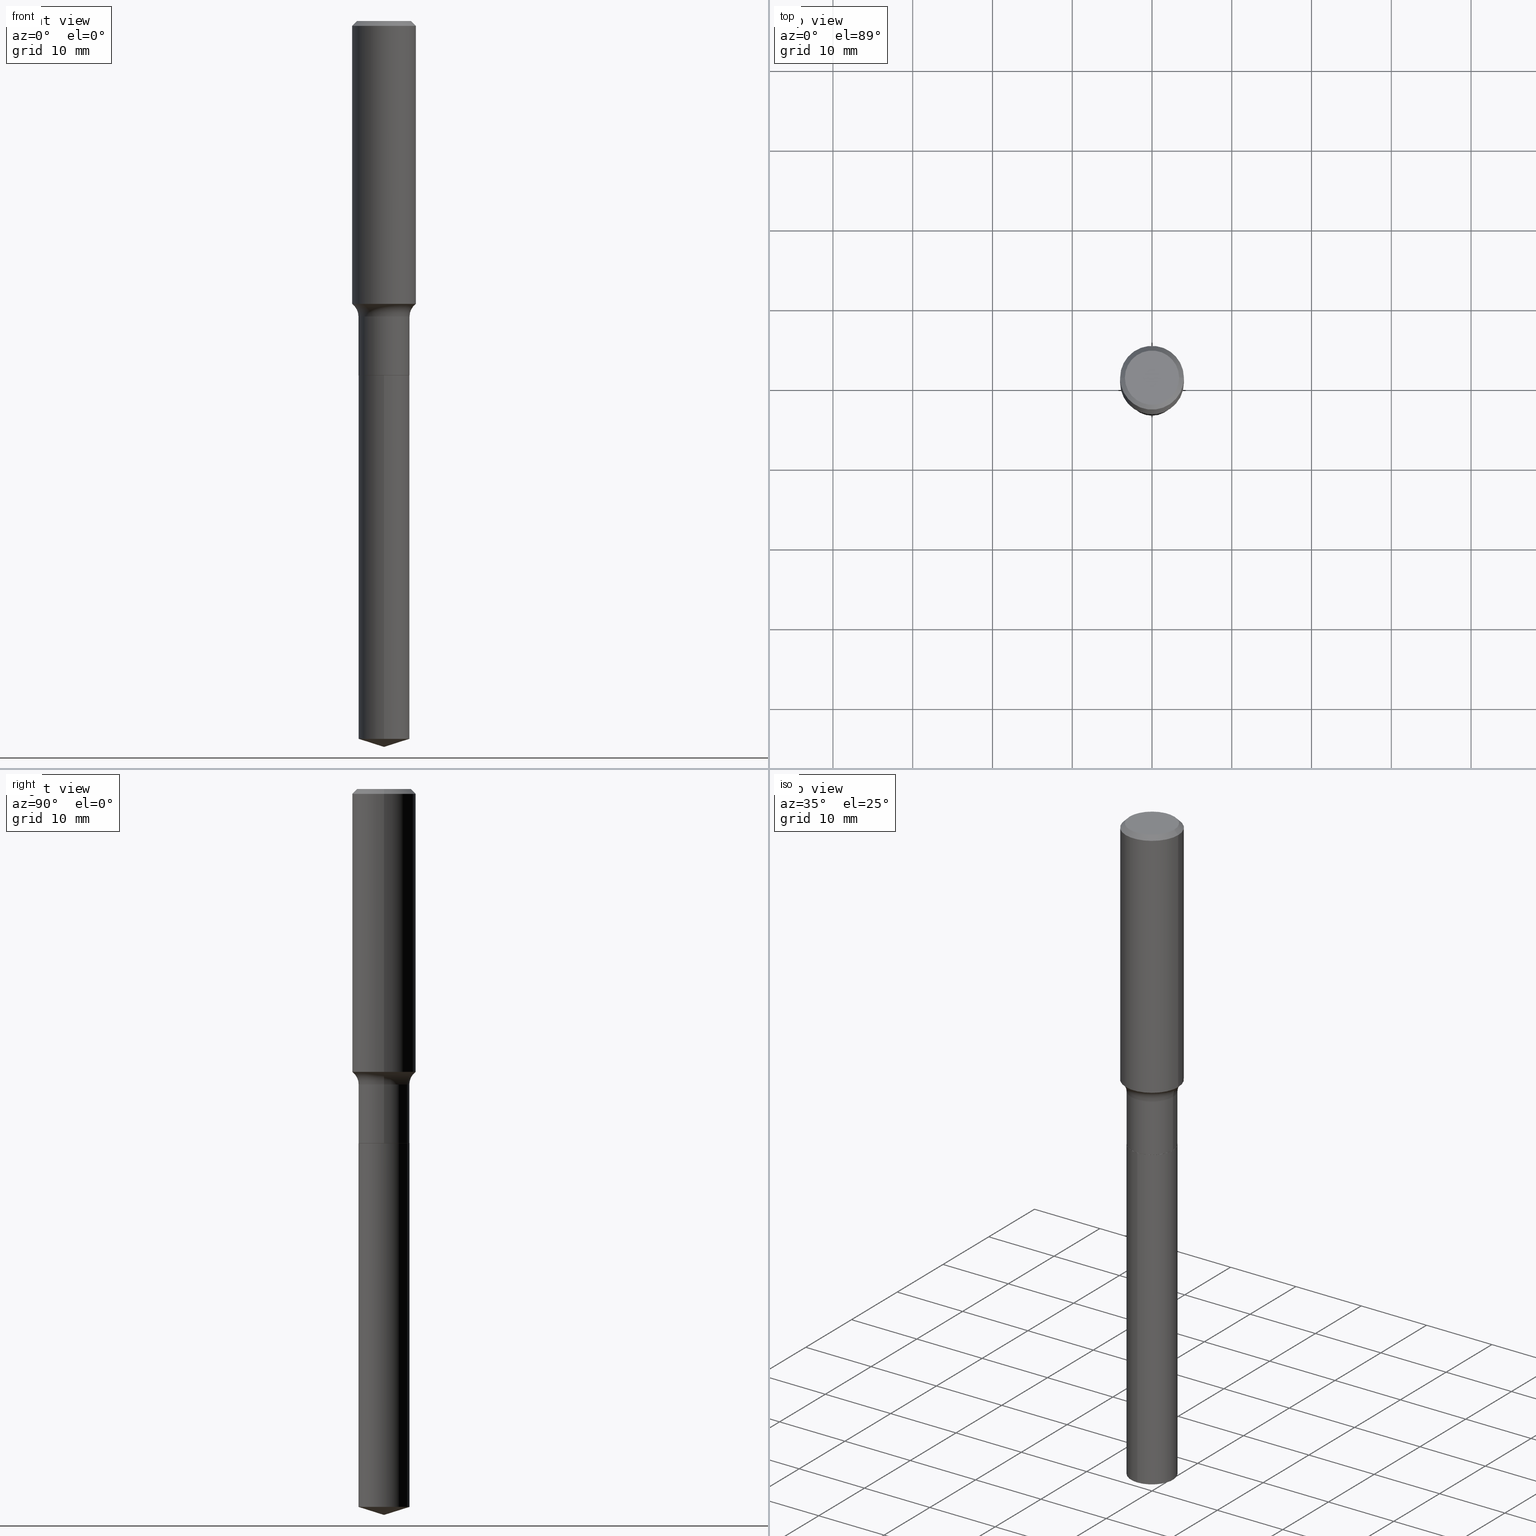
[diagram: canonical four-view strip — front | top / right | iso, engineering-drawing reading convention]
A machine part, canonical four-view strip (front | top / right | iso — engineering-drawing reading convention). The complete STEP part file that produces these views, byte-faithful:
ISO-10303-21;
HEADER;
FILE_DESCRIPTION (( 'STEP AP203' ),
    '1' );
FILE_NAME ('64136.STEP',
    '2024-04-19T15:18:46',
    ( '' ),
    ( '' ),
    'SwSTEP 2.0',
    'SolidWorks 2023',
    '' );
FILE_SCHEMA (( 'CONFIG_CONTROL_DESIGN' ));
ENDSEC;

DATA;
#1 = ORIENTED_EDGE ( 'NONE', *, *, #36, .F. ) ;
#2 = DIRECTION ( 'NONE',  ( -2.445468806185136597E-29, 3.491481338843145583E-15, 1.000000000000000000 ) ) ;
#3 = LINE ( 'NONE', #141, #125 ) ;
#4 = ORIENTED_EDGE ( 'NONE', *, *, #395, .F. ) ;
#5 = ADVANCED_FACE ( 'NONE', ( #437 ), #405, .T. ) ;
#6 = VECTOR ( 'NONE', #140, 39.37007874015748143 ) ;
#7 = CARTESIAN_POINT ( 'NONE',  ( 4.274924020092237183E-29, -6.103458528431703746E-15, -1.748100000000000209 ) ) ;
#8 = DIRECTION ( 'NONE',  ( -6.982962677686265922E-15, -1.000000000000000000, 4.336266656609941617E-15 ) ) ;
#9 = LENGTH_MEASURE_WITH_UNIT ( LENGTH_MEASURE( 0.02539999999999999897 ), #319 );
#10 = AXIS2_PLACEMENT_3D ( 'NONE', #484, #23, #56 ) ;
#11 = APPROVAL_STATUS ( 'not_yet_approved' ) ;
#12 = AXIS2_PLACEMENT_3D ( 'NONE', #366, #388, #312 ) ;
#13 = DIRECTION ( 'NONE',  ( 0.7071067811865450192, -7.319954787623246579E-15, -0.7071067811865500152 ) ) ;
#14 = EDGE_CURVE ( 'NONE', #299, #51, #477, .T. ) ;
#15 = EDGE_LOOP ( 'NONE', ( #171, #466, #411, #402 ) ) ;
#16 = DIRECTION ( 'NONE',  ( -2.445468806185136597E-29, 3.491481338843145583E-15, 1.000000000000000000 ) ) ;
#17 = MANIFOLD_SOLID_BREP ( 'Body-Move/Copy2[2]', #335 ) ;
#18 = AXIS2_PLACEMENT_3D ( 'NONE', #488, #238, #397 ) ;
#19 = VECTOR ( 'NONE', #456, 39.37007874015748143 ) ;
#20 = CARTESIAN_POINT ( 'NONE',  ( 4.274924020092237183E-29, -6.103458528431703746E-15, -1.748100000000000209 ) ) ;
#21 = LINE ( 'NONE', #473, #376 ) ;
#22 = PERSON_AND_ORGANIZATION ( #122, #368 ) ;
#23 = DIRECTION ( 'NONE',  ( -2.445468806185136597E-29, 3.491481338843145583E-15, 1.000000000000000000 ) ) ;
#24 = LINE ( 'NONE', #123, #269 ) ;
#25 = APPROVAL_STATUS ( 'not_yet_approved' ) ;
#26 = ORIENTED_EDGE ( 'NONE', *, *, #99, .T. ) ;
#27 = FACE_OUTER_BOUND ( 'NONE', #37, .T. ) ;
#28 = ORIENTED_EDGE ( 'NONE', *, *, #249, .T. ) ;
#29 = AXIS2_PLACEMENT_3D ( 'NONE', #373, #246, #134 ) ;
#30 = CARTESIAN_POINT ( 'NONE',  ( 5.777420054612421980E-31, -8.248624663016985234E-17, -0.02362500000000015282 ) ) ;
#31 = AXIS2_PLACEMENT_3D ( 'NONE', #268, #470, #187 ) ;
#32 = ORIENTED_EDGE ( 'NONE', *, *, #163, .T. ) ;
#33 = EDGE_CURVE ( 'NONE', #51, #409, #63, .T. ) ;
#34 = FACE_OUTER_BOUND ( 'NONE', #196, .T. ) ;
#35 = CARTESIAN_POINT ( 'NONE',  ( 8.952838470578126208E-16, 0.1259999999999875941, -3.542972352601249764 ) ) ;
#36 = EDGE_CURVE ( 'NONE', #299, #409, #21, .T. ) ;
#37 = EDGE_LOOP ( 'NONE', ( #4, #447, #217, #398 ) ) ;
#38 = CONICAL_SURFACE ( 'NONE', #74, 124.8659371009168240, 1.265363707695895679 ) ;
#39 = EDGE_LOOP ( 'NONE', ( #152, #119, #113, #351 ) ) ;
#40 = AXIS2_PLACEMENT_3D ( 'NONE', #30, #130, #403 ) ;
#41 = DATE_AND_TIME ( #225, #251 ) ;
#42 = APPLICATION_CONTEXT ( 'configuration controlled 3d designs of mechanical parts and assemblies' ) ;
#43 = EDGE_CURVE ( 'NONE', #418, #165, #91, .T. ) ;
#44 = VECTOR ( 'NONE', #83, 39.37007874015748143 ) ;
#45 = CARTESIAN_POINT ( 'NONE',  ( 8.664284495484621704E-29, -1.237014147748660081E-14, -3.542972352601248875 ) ) ;
#46 = CARTESIAN_POINT ( 'NONE',  ( -0.1255000000000000004, -5.211727395052777615E-15, -1.748100000000000209 ) ) ;
#47 = PERSON_AND_ORGANIZATION_ROLE ( 'creator' ) ;
#48 = CARTESIAN_POINT ( 'NONE',  ( -1.002970424325033577E-46, 1.431975951230896486E-32, 4.101342130344485961E-18 ) ) ;
#49 = DIRECTION ( 'NONE',  ( -6.982962677686265922E-15, -1.000000000000000000, 4.336266656609941617E-15 ) ) ;
#50 = SHAPE_DEFINITION_REPRESENTATION ( #114, #431 ) ;
#51 = VERTEX_POINT ( 'NONE', #362 ) ;
#52 = CARTESIAN_POINT ( 'NONE',  ( -0.1259999999999999731, 8.952838470577260433E-16, -6.197858213721180607E-30 ) ) ;
#53 = DATE_AND_TIME ( #453, #393 ) ;
#54 = ORIENTED_EDGE ( 'NONE', *, *, #291, .T. ) ;
#55 = LINE ( 'NONE', #230, #446 ) ;
#56 = DIRECTION ( 'NONE',  ( 1.000000000000000000, -6.982962677686267499E-15, 0.000000000000000000 ) ) ;
#57 = ORIENTED_EDGE ( 'NONE', *, *, #474, .F. ) ;
#58 = CARTESIAN_POINT ( 'NONE',  ( -0.1259999999999999731, -4.701386165040894115E-15, -1.458299999999999930 ) ) ;
#59 = EDGE_CURVE ( 'NONE', #344, #127, #24, .T. ) ;
#60 = SECURITY_CLASSIFICATION_LEVEL ( 'unclassified' ) ;
#61 = DIRECTION ( 'NONE',  ( -0.7071067811865450192, 2.468850131082230634E-15, -0.7071067811865500152 ) ) ;
#62 = ORIENTED_EDGE ( 'NONE', *, *, #270, .T. ) ;
#63 = CIRCLE ( 'NONE', #445, 0.1260000000000000009 ) ;
#64 = CARTESIAN_POINT ( 'NONE',  ( 8.952838470578130152E-16, 0.1259999999999939224, -1.748100000000000653 ) ) ;
#65 = CC_DESIGN_APPROVAL ( #343, ( #112 ) ) ;
#66 = CARTESIAN_POINT ( 'NONE',  ( -8.751809210620882118E-28, 1.249492841719930742E-13, 35.78737874015747877 ) ) ;
#67 = DIRECTION ( 'NONE',  ( 1.000000000000000000, -6.982962677686266711E-15, 4.876176775795936353E-29 ) ) ;
#68 = DIRECTION ( 'NONE',  ( -2.445468806185136877E-29, 3.491481338843145188E-15, 1.000000000000000000 ) ) ;
#69 = EDGE_LOOP ( 'NONE', ( #236, #491, #327 ) ) ;
#70 = ADVANCED_FACE ( 'NONE', ( #380 ), #458, .F. ) ;
#71 = ORIENTED_EDGE ( 'NONE', *, *, #424, .T. ) ;
#72 = VECTOR ( 'NONE', #391, 39.37007874015748854 ) ;
#73 = CARTESIAN_POINT ( 'NONE',  ( 0.1259999999999999731, -5.971480533823427821E-15, -1.458299999999999930 ) ) ;
#74 = AXIS2_PLACEMENT_3D ( 'NONE', #66, #142, #178 ) ;
#75 = CARTESIAN_POINT ( 'NONE',  ( 3.566227160059783861E-29, -5.091627236434958468E-15, -1.458299999999999930 ) ) ;
#76 = CARTESIAN_POINT ( 'NONE',  ( -0.1255000000000000004, -5.209078167878667203E-15, -1.748100000000000209 ) ) ;
#77 = EDGE_CURVE ( 'NONE', #267, #165, #223, .T. ) ;
#78 = AXIS2_PLACEMENT_3D ( 'NONE', #48, #414, #172 ) ;
#79 = LOCAL_TIME ( 11, 18, 46.00000000000000000, #161 ) ;
#80 = AXIS2_PLACEMENT_3D ( 'NONE', #20, #166, #334 ) ;
#81 = PERSON_AND_ORGANIZATION_ROLE ( 'design_owner' ) ;
#82 = ORIENTED_EDGE ( 'NONE', *, *, #291, .F. ) ;
#83 = DIRECTION ( 'NONE',  ( 0.7071067811866199593, -2.468850131083015945E-15, 0.7071067811864750752 ) ) ;
#84 = AXIS2_PLACEMENT_3D ( 'NONE', #328, #279, #204 ) ;
#85 = DIRECTION ( 'NONE',  ( 0.000000000000000000, 0.000000000000000000, 1.000000000000000000 ) ) ;
#86 = TOROIDAL_SURFACE ( 'NONE', #406, 0.2039999999999999591, 0.07800000000000001377 ) ;
#87 = CYLINDRICAL_SURFACE ( 'NONE', #168, 0.1260000000000000009 ) ;
#88 = LINE ( 'NONE', #385, #231 ) ;
#89 = DIRECTION ( 'NONE',  ( 1.000000000000000000, -6.982962677686267499E-15, 0.000000000000000000 ) ) ;
#90 = VERTEX_POINT ( 'NONE', #415 ) ;
#91 = LINE ( 'NONE', #52, #454 ) ;
#92 = APPROVAL_DATE_TIME ( #401, #352 ) ;
#93 = EDGE_LOOP ( 'NONE', ( #132, #400, #62, #274 ) ) ;
#94 = FACE_OUTER_BOUND ( 'NONE', #318, .T. ) ;
#95 = DIRECTION ( 'NONE',  ( -6.982962677686266711E-15, -1.000000000000000000, 3.491481338843145583E-15 ) ) ;
#96 = CALENDAR_DATE ( 2024, 19, 4 ) ;
#97 = VERTEX_POINT ( 'NONE', #73 ) ;
#98 = APPROVAL_PERSON_ORGANIZATION ( #345, #352, #330 ) ;
#99 = EDGE_CURVE ( 'NONE', #90, #160, #3, .T. ) ;
#100 = DIRECTION ( 'NONE',  ( 2.445468806185136597E-29, -3.491481338843145583E-15, -1.000000000000000000 ) ) ;
#101 = DIRECTION ( 'NONE',  ( 1.000000000000000000, -6.982962677686267499E-15, 0.000000000000000000 ) ) ;
#102 = DIRECTION ( 'NONE',  ( 7.105427357601001859E-15, 1.000000000000000000, -3.491481338843145583E-15 ) ) ;
#103 = CARTESIAN_POINT ( 'NONE',  ( 3.566227160059783861E-29, -5.091627236434958468E-15, -1.458299999999999930 ) ) ;
#104 = AXIS2_PLACEMENT_3D ( 'NONE', #412, #378, #212 ) ;
#105 = CARTESIAN_POINT ( 'NONE',  ( 4.274924020092237183E-29, -6.103458528431703746E-15, -1.748100000000000209 ) ) ;
#106 = ADVANCED_FACE ( 'NONE', ( #34 ), #294, .T. ) ;
#107 = DIRECTION ( 'NONE',  ( -2.445468806185136597E-29, 3.491481338843145583E-15, 1.000000000000000000 ) ) ;
#108 = AXIS2_PLACEMENT_3D ( 'NONE', #316, #16, #157 ) ;
#109 = DIRECTION ( 'NONE',  ( -2.445468806185136597E-29, 3.491481338843145583E-15, 1.000000000000000000 ) ) ;
#110 = PRODUCT ( '64136', '64136', '', ( #233 ) ) ;
#111 = ORIENTED_EDGE ( 'NONE', *, *, #33, .T. ) ;
#112 = PRODUCT_DEFINITION ( 'UNKNOWN', '', #317, #407 ) ;
#113 = ORIENTED_EDGE ( 'NONE', *, *, #383, .T. ) ;
#114 = PRODUCT_DEFINITION_SHAPE ( 'NONE', 'NONE',  #112 ) ;
#115 = DIRECTION ( 'NONE',  ( -2.445500076387621341E-29, 3.491436558133398134E-15, 1.000000000000000000 ) ) ;
#116 = COORDINATED_UNIVERSAL_TIME_OFFSET ( 5, 0, .BEHIND. ) ;
#117 = EDGE_CURVE ( 'NONE', #361, #267, #213, .T. ) ;
#118 = EDGE_LOOP ( 'NONE', ( #298, #363, #169, #211 ) ) ;
#119 = ORIENTED_EDGE ( 'NONE', *, *, #295, .T. ) ;
#120 = LINE ( 'NONE', #396, #6 ) ;
#121 = FACE_OUTER_BOUND ( 'NONE', #93, .T. ) ;
#122 = PERSON ( 'UNSPECIFIED', 'UNSPECIFIED', 'UNSPECIFIED', ('UNSPECIFIED'), ('UNSPECIFIED'), ('UNSPECIFIED') ) ;
#123 = CARTESIAN_POINT ( 'NONE',  ( 0.1575000000000000011, -1.163014681279185964E-15, -0.02362500000000015282 ) ) ;
#124 = DATE_TIME_ROLE ( 'classification_date' ) ;
#125 = VECTOR ( 'NONE', #61, 39.37007874015748143 ) ;
#126 = EDGE_CURVE ( 'NONE', #361, #97, #149, .T. ) ;
#127 = VERTEX_POINT ( 'NONE', #200 ) ;
#128 = DIRECTION ( 'NONE',  ( -2.445468806185136597E-29, 3.491481338843145583E-15, 1.000000000000000000 ) ) ;
#129 = CC_DESIGN_PERSON_AND_ORGANIZATION_ASSIGNMENT ( #369, #333, ( #159 ) ) ;
#130 = DIRECTION ( 'NONE',  ( -2.445468806185136597E-29, 3.491481338843145583E-15, 1.000000000000000000 ) ) ;
#131 = CARTESIAN_POINT ( 'NONE',  ( 0.000000000000000000, 0.000000000000000000, 0.000000000000000000 ) ) ;
#132 = ORIENTED_EDGE ( 'NONE', *, *, #301, .F. ) ;
#133 = VERTEX_POINT ( 'NONE', #364 ) ;
#134 = DIRECTION ( 'NONE',  ( -6.982962677686265922E-15, -1.000000000000000000, 4.336266656609941617E-15 ) ) ;
#135 = VECTOR ( 'NONE', #261, 39.37007874015748143 ) ;
#136 = CC_DESIGN_SECURITY_CLASSIFICATION ( #159, ( #317 ) ) ;
#137 = CARTESIAN_POINT ( 'NONE',  ( -1.002970424325033577E-46, 1.431975951230896486E-32, 4.101342130344485961E-18 ) ) ;
#138 = DIRECTION ( 'NONE',  ( 1.000000000000000000, -6.982962677686266711E-15, 4.876176775795936353E-29 ) ) ;
#139 = LINE ( 'NONE', #292, #19 ) ;
#140 = DIRECTION ( 'NONE',  ( -2.445500076387621622E-29, 3.491436558133398134E-15, 1.000000000000000000 ) ) ;
#141 = CARTESIAN_POINT ( 'NONE',  ( -0.1575000000000000011, 1.017330375105417098E-15, -0.02362500000000015282 ) ) ;
#142 = DIRECTION ( 'NONE',  ( -2.445500076387621341E-29, 3.491436558133398134E-15, 1.000000000000000000 ) ) ;
#143 = EDGE_CURVE ( 'NONE', #433, #253, #416, .T. ) ;
#144 = ORIENTED_EDGE ( 'NONE', *, *, #356, .F. ) ;
#145 = DIRECTION ( 'NONE',  ( -2.445500076387621341E-29, 3.491436558133398134E-15, 1.000000000000000000 ) ) ;
#146 = CIRCLE ( 'NONE', #78, 0.1338749999999999940 ) ;
#147 = AXIS2_PLACEMENT_3D ( 'NONE', #7, #425, #227 ) ;
#148 = CARTESIAN_POINT ( 'NONE',  ( 3.566227160059783861E-29, -5.091627236434958468E-15, -1.458299999999999930 ) ) ;
#149 = CIRCLE ( 'NONE', #287, 0.07799999999999999989 ) ;
#150 = VECTOR ( 'NONE', #226, 39.37007874015748143 ) ;
#151 = ADVANCED_FACE ( 'NONE', ( #167 ), #449, .T. ) ;
#152 = ORIENTED_EDGE ( 'NONE', *, *, #424, .F. ) ;
#153 = LINE ( 'NONE', #423, #44 ) ;
#154 = PERSON_AND_ORGANIZATION ( #122, #368 ) ;
#155 = DIRECTION ( 'NONE',  ( 1.000000000000000000, -6.982962677686268288E-15, 4.883557194083113462E-29 ) ) ;
#156 = ADVANCED_FACE ( 'NONE', ( #94 ), #306, .T. ) ;
#157 = DIRECTION ( 'NONE',  ( 1.000000000000000000, -6.982962677686268288E-15, 4.883557194083113462E-29 ) ) ;
#158 = CARTESIAN_POINT ( 'NONE',  ( 4.274924020092237183E-29, -6.103458528431703746E-15, -1.748100000000000209 ) ) ;
#159 = SECURITY_CLASSIFICATION ( '', '', #60 ) ;
#160 = VERTEX_POINT ( 'NONE', #162 ) ;
#161 = COORDINATED_UNIVERSAL_TIME_OFFSET ( 5, 0, .BEHIND. ) ;
#162 = CARTESIAN_POINT ( 'NONE',  ( -0.1575000000000000011, -1.358626883343626114E-15, -0.02362500000000015282 ) ) ;
#163 = EDGE_CURVE ( 'NONE', #127, #160, #256, .T. ) ;
#164 = PERSON_AND_ORGANIZATION ( #122, #368 ) ;
#165 = VERTEX_POINT ( 'NONE', #58 ) ;
#166 = DIRECTION ( 'NONE',  ( -2.445468806185136597E-29, 3.491481338843145583E-15, 1.000000000000000000 ) ) ;
#167 = FACE_OUTER_BOUND ( 'NONE', #118, .T. ) ;
#168 = AXIS2_PLACEMENT_3D ( 'NONE', #158, #305, #426 ) ;
#169 = ORIENTED_EDGE ( 'NONE', *, *, #323, .F. ) ;
#170 = PLANE ( 'NONE',  #84 ) ;
#171 = ORIENTED_EDGE ( 'NONE', *, *, #77, .F. ) ;
#172 = DIRECTION ( 'NONE',  ( 1.000000000000000000, -6.982962677686266711E-15, 4.876170806578254279E-29 ) ) ;
#173 = ORIENTED_EDGE ( 'NONE', *, *, #295, .F. ) ;
#174 = DIRECTION ( 'NONE',  ( -1.000000000000000000, 6.982962677686265922E-15, 0.000000000000000000 ) ) ;
#175 = CIRCLE ( 'NONE', #342, 0.1260000000000000009 ) ;
#176 = CIRCLE ( 'NONE', #468, 0.1259999999999999731 ) ;
#177 = DIRECTION ( 'NONE',  ( -6.982962677686265922E-15, -1.000000000000000000, 4.336266656609941617E-15 ) ) ;
#178 = DIRECTION ( 'NONE',  ( -6.982962677686265133E-15, -1.000000000000000000, 3.500519750498655128E-15 ) ) ;
#179 = ORIENTED_EDGE ( 'NONE', *, *, #163, .F. ) ;
#180 = ADVANCED_FACE ( 'NONE', ( #482 ), #170, .F. ) ;
#181 = DIRECTION ( 'NONE',  ( 1.000000000000000000, -6.982962677686267499E-15, 0.000000000000000000 ) ) ;
#182 = MANIFOLD_SOLID_BREP ( 'Body-Move/Copy2[1]', #197 ) ;
#183 = ORIENTED_EDGE ( 'NONE', *, *, #356, .T. ) ;
#184 = FACE_OUTER_BOUND ( 'NONE', #237, .T. ) ;
#185 = ORIENTED_EDGE ( 'NONE', *, *, #432, .F. ) ;
#186 = LOCAL_TIME ( 11, 18, 46.00000000000000000, #116 ) ;
#187 = DIRECTION ( 'NONE',  ( 1.000000000000000000, -6.982962677686262766E-15, 0.000000000000000000 ) ) ;
#188 = PERSON_AND_ORGANIZATION ( #122, #368 ) ;
#189 = AXIS2_PLACEMENT_3D ( 'NONE', #457, #107, #101 ) ;
#190 = VERTEX_POINT ( 'NONE', #367 ) ;
#191 = DIRECTION ( 'NONE',  ( 6.776566513254265237E-15, 0.9537169507482300412, 0.3007057995042633491 ) ) ;
#192 = CARTESIAN_POINT ( 'NONE',  ( -8.798532973884268532E-16, -0.1260000000000061071, -1.748099999999999543 ) ) ;
#193 = ADVANCED_FACE ( 'NONE', ( #121 ), #248, .T. ) ;
#194 = CC_DESIGN_DATE_AND_TIME_ASSIGNMENT ( #41, #309, ( #112 ) ) ;
#195 = COORDINATED_UNIVERSAL_TIME_OFFSET ( 5, 0, .BEHIND. ) ;
#196 = EDGE_LOOP ( 'NONE', ( #111, #71, #475, #325 ) ) ;
#197 = CLOSED_SHELL ( 'NONE', ( #106, #310, #5, #478, #331 ) ) ;
#198 = ORIENTED_EDGE ( 'NONE', *, *, #143, .T. ) ;
#199 = ADVANCED_FACE ( 'NONE', ( #277 ), #440, .T. ) ;
#200 = CARTESIAN_POINT ( 'NONE',  ( 0.1575000000000000011, -1.182302868365756679E-15, -0.02362500000000015282 ) ) ;
#201 = DIRECTION ( 'NONE',  ( -2.445468806185136877E-29, 3.491481338843145188E-15, 1.000000000000000000 ) ) ;
#202 = APPROVAL_ROLE ( '' ) ;
#203 = ORIENTED_EDGE ( 'NONE', *, *, #301, .T. ) ;
#204 = DIRECTION ( 'NONE',  ( 1.000000000000000000, -6.982962677686265922E-15, 4.876176775795935793E-29 ) ) ;
#205 = DATE_AND_TIME ( #96, #79 ) ;
#206 = ORIENTED_EDGE ( 'NONE', *, *, #244, .F. ) ;
#207 = AXIS2_PLACEMENT_3D ( 'NONE', #469, #436, #89 ) ;
#208 = AXIS2_PLACEMENT_3D ( 'NONE', #429, #85, #275 ) ;
#209 = CARTESIAN_POINT ( 'NONE',  ( -0.1575000000000001954, -3.753872328879240830E-15, -1.395676122764555327 ) ) ;
#210 = ADVANCED_FACE ( 'NONE', ( #27 ), #490, .F. ) ;
#211 = ORIENTED_EDGE ( 'NONE', *, *, #346, .F. ) ;
#212 = DIRECTION ( 'NONE',  ( -1.000000000000000000, 6.982962677686265922E-15, 0.000000000000000000 ) ) ;
#213 = CIRCLE ( 'NONE', #18, 0.1575000000000001676 ) ;
#214 = AXIS2_PLACEMENT_3D ( 'NONE', #215, #2, #138 ) ;
#215 = CARTESIAN_POINT ( 'NONE',  ( 0.000000000000000000, 0.000000000000000000, 0.000000000000000000 ) ) ;
#216 = ADVANCED_FACE ( 'NONE', ( #354 ), #262, .T. ) ;
#217 = ORIENTED_EDGE ( 'NONE', *, *, #461, .T. ) ;
#218 = CARTESIAN_POINT ( 'NONE',  ( 4.274924020092237183E-29, -6.103458528431703746E-15, -1.748100000000000209 ) ) ;
#219 = FACE_OUTER_BOUND ( 'NONE', #15, .T. ) ;
#220 = CC_DESIGN_PERSON_AND_ORGANIZATION_ASSIGNMENT ( #22, #487, ( #317 ) ) ;
#221 = ORIENTED_EDGE ( 'NONE', *, *, #443, .F. ) ;
#222 = DIRECTION ( 'NONE',  ( -1.000000000000000000, 6.982962677686265922E-15, -4.876176775795935793E-29 ) ) ;
#223 = CIRCLE ( 'NONE', #240, 0.07799999999999999989 ) ;
#224 = APPROVAL_PERSON_ORGANIZATION ( #164, #304, #202 ) ;
#225 = CALENDAR_DATE ( 2024, 19, 4 ) ;
#226 = DIRECTION ( 'NONE',  ( -0.7071067811866199593, 7.493145998870616062E-15, 0.7071067811864750752 ) ) ;
#227 = DIRECTION ( 'NONE',  ( 6.982962677686265922E-15, 1.000000000000000000, -3.491436558133398134E-15 ) ) ;
#228 =( CONVERSION_BASED_UNIT ( 'INCH', #9 ) LENGTH_UNIT ( ) NAMED_UNIT ( #303 ) );
#229 = AXIS2_PLACEMENT_3D ( 'NONE', #413, #337, #222 ) ;
#230 = CARTESIAN_POINT ( 'NONE',  ( -0.1575000000000000844, 1.119104808822158392E-15, -7.747322767151481189E-30 ) ) ;
#231 = VECTOR ( 'NONE', #264, 39.37007874015748143 ) ;
#232 = CARTESIAN_POINT ( 'NONE',  ( 8.761383796792003596E-29, -1.250892631914194434E-14, -3.582699999999999996 ) ) ;
#233 = MECHANICAL_CONTEXT ( 'NONE', #42, 'mechanical' ) ;
#234 = ORIENTED_EDGE ( 'NONE', *, *, #252, .F. ) ;
#235 = APPROVAL_ROLE ( '' ) ;
#236 = ORIENTED_EDGE ( 'NONE', *, *, #14, .F. ) ;
#237 = EDGE_LOOP ( 'NONE', ( #198, #290 ) ) ;
#238 = DIRECTION ( 'NONE',  ( -2.445468806185136597E-29, 3.491481338843145583E-15, 1.000000000000000000 ) ) ;
#239 = ORIENTED_EDGE ( 'NONE', *, *, #443, .T. ) ;
#240 = AXIS2_PLACEMENT_3D ( 'NONE', #302, #102, #255 ) ;
#241 = AXIS2_PLACEMENT_3D ( 'NONE', #300, #145, #427 ) ;
#242 = PERSON_AND_ORGANIZATION_ROLE ( 'creator' ) ;
#243 = ORIENTED_EDGE ( 'NONE', *, *, #474, .T. ) ;
#244 = EDGE_CURVE ( 'NONE', #90, #344, #146, .T. ) ;
#245 = DIRECTION ( 'NONE',  ( 1.000000000000000000, -6.982962677686265922E-15, 0.000000000000000000 ) ) ;
#246 = DIRECTION ( 'NONE',  ( -2.445500076387621341E-29, 3.491436558133398134E-15, 1.000000000000000000 ) ) ;
#247 = UNCERTAINTY_MEASURE_WITH_UNIT (LENGTH_MEASURE( 1.000000000000000082E-05 ), #228, 'distance_accuracy_value', 'NONE');
#248 = CYLINDRICAL_SURFACE ( 'NONE', #422, 0.1575000000000000844 ) ;
#249 = EDGE_CURVE ( 'NONE', #160, #127, #250, .T. ) ;
#250 = CIRCLE ( 'NONE', #40, 0.1575000000000000011 ) ;
#251 = LOCAL_TIME ( 11, 18, 46.00000000000000000, #195 ) ;
#252 = EDGE_CURVE ( 'NONE', #344, #90, #357, .T. ) ;
#253 = VERTEX_POINT ( 'NONE', #64 ) ;
#254 = FACE_OUTER_BOUND ( 'NONE', #463, .T. ) ;
#255 = DIRECTION ( 'NONE',  ( -1.000000000000000000, 7.105427357601005014E-15, 0.000000000000000000 ) ) ;
#256 = CIRCLE ( 'NONE', #296, 0.1575000000000000011 ) ;
#257 = CIRCLE ( 'NONE', #31, 0.1260000000000000009 ) ;
#258 = DIRECTION ( 'NONE',  ( -2.445500076387621341E-29, 3.491436558133398134E-15, 1.000000000000000000 ) ) ;
#259 = CARTESIAN_POINT ( 'NONE',  ( -0.1260000000000000286, -4.701386165040894115E-15, -1.747600000000000264 ) ) ;
#260 = EDGE_LOOP ( 'NONE', ( #375, #311 ) ) ;
#261 = DIRECTION ( 'NONE',  ( -2.445468806185136877E-29, 3.491481338843145188E-15, 1.000000000000000000 ) ) ;
#262 = CONICAL_SURFACE ( 'NONE', #207, 0.1255000000000000004, 0.7853981633975507526 ) ;
#263 = CIRCLE ( 'NONE', #189, 0.1575000000000001676 ) ;
#264 = DIRECTION ( 'NONE',  ( -2.445500076387621622E-29, 3.491436558133398134E-15, 1.000000000000000000 ) ) ;
#265 = ORIENTED_EDGE ( 'NONE', *, *, #346, .T. ) ;
#266 = LINE ( 'NONE', #46, #150 ) ;
#267 = VERTEX_POINT ( 'NONE', #209 ) ;
#268 = CARTESIAN_POINT ( 'NONE',  ( 4.273701285689145503E-29, -6.101712787762282243E-15, -1.747600000000000264 ) ) ;
#269 = VECTOR ( 'NONE', #13, 39.37007874015748143 ) ;
#270 = EDGE_CURVE ( 'NONE', #361, #127, #371, .T. ) ;
#271 = APPROVAL_PERSON_ORGANIZATION ( #154, #343, #235 ) ;
#272 = ORIENTED_EDGE ( 'NONE', *, *, #461, .F. ) ;
#273 = CALENDAR_DATE ( 2024, 19, 4 ) ;
#274 = ORIENTED_EDGE ( 'NONE', *, *, #249, .F. ) ;
#275 = DIRECTION ( 'NONE',  ( 1.000000000000000000, 0.000000000000000000, 0.000000000000000000 ) ) ;
#276 = ORIENTED_EDGE ( 'NONE', *, *, #270, .F. ) ;
#277 = FACE_OUTER_BOUND ( 'NONE', #322, .T. ) ;
#278 = VERTEX_POINT ( 'NONE', #76 ) ;
#279 = DIRECTION ( 'NONE',  ( -2.438088387897960049E-29, 3.491481338843145188E-15, 1.000000000000000000 ) ) ;
#280 = ORIENTED_EDGE ( 'NONE', *, *, #59, .F. ) ;
#281 = EDGE_CURVE ( 'NONE', #253, #433, #175, .T. ) ;
#282 = DIRECTION ( 'NONE',  ( 1.000000000000000000, -6.982962677686267499E-15, 4.876176775795936353E-29 ) ) ;
#283 = CC_DESIGN_PERSON_AND_ORGANIZATION_ASSIGNMENT ( #438, #47, ( #112 ) ) ;
#284 = COORDINATED_UNIVERSAL_TIME_OFFSET ( 5, 0, .BEHIND. ) ;
#285 = DIRECTION ( 'NONE',  ( 1.000000000000000000, -6.982962677686267499E-15, 4.876176775795936353E-29 ) ) ;
#286 = AXIS2_PLACEMENT_3D ( 'NONE', #452, #404, #285 ) ;
#287 = AXIS2_PLACEMENT_3D ( 'NONE', #408, #95, #399 ) ;
#288 = CARTESIAN_POINT ( 'NONE',  ( 5.777420054612421980E-31, -8.248624663016985234E-17, -0.02362500000000015282 ) ) ;
#289 = DIRECTION ( 'NONE',  ( -2.445468806185136597E-29, 3.491481338843145583E-15, 1.000000000000000000 ) ) ;
#290 = ORIENTED_EDGE ( 'NONE', *, *, #281, .T. ) ;
#291 = EDGE_CURVE ( 'NONE', #133, #278, #307, .T. ) ;
#292 = CARTESIAN_POINT ( 'NONE',  ( 0.1259999999999999731, -8.798532973884694517E-16, 6.143982737502878847E-30 ) ) ;
#293 = FACE_OUTER_BOUND ( 'NONE', #308, .T. ) ;
#294 = CYLINDRICAL_SURFACE ( 'NONE', #348, 0.1260000000000000009 ) ;
#295 = EDGE_CURVE ( 'NONE', #409, #51, #462, .T. ) ;
#296 = AXIS2_PLACEMENT_3D ( 'NONE', #476, #128, #245 ) ;
#297 =( GEOMETRIC_REPRESENTATION_CONTEXT ( 3 ) GLOBAL_UNCERTAINTY_ASSIGNED_CONTEXT ( ( #247 ) ) GLOBAL_UNIT_ASSIGNED_CONTEXT ( ( #228, #467, #464 ) ) REPRESENTATION_CONTEXT ( 'NONE', 'WORKASPACE' ) );
#298 = ORIENTED_EDGE ( 'NONE', *, *, #432, .T. ) ;
#299 = VERTEX_POINT ( 'NONE', #359 ) ;
#300 = CARTESIAN_POINT ( 'NONE',  ( 8.664284495484621704E-29, -1.237014147748660081E-14, -3.542972352601248875 ) ) ;
#301 = EDGE_CURVE ( 'NONE', #267, #160, #55, .T. ) ;
#302 = CARTESIAN_POINT ( 'NONE',  ( -0.2039999999999999591, -3.642120055484354379E-15, -1.458299999999999930 ) ) ;
#303 = DIMENSIONAL_EXPONENTS ( 1.000000000000000000, 0.000000000000000000, 0.000000000000000000, 0.000000000000000000, 0.000000000000000000, 0.000000000000000000, 0.000000000000000000 ) ;
#304 = APPROVAL ( #372, 'UNSPECIFIED' ) ;
#305 = DIRECTION ( 'NONE',  ( -2.445500076387621341E-29, 3.491436558133398134E-15, 1.000000000000000000 ) ) ;
#306 = CONICAL_SURFACE ( 'NONE', #10, 0.1255000000000000004, 0.7853981633975507526 ) ;
#307 = CIRCLE ( 'NONE', #455, 0.1255000000000000004 ) ;
#308 = EDGE_LOOP ( 'NONE', ( #280, #206, #26, #28 ) ) ;
#309 = DATE_TIME_ROLE ( 'creation_date' ) ;
#310 = ADVANCED_FACE ( 'NONE', ( #481 ), #38, .T. ) ;
#311 = ORIENTED_EDGE ( 'NONE', *, *, #252, .T. ) ;
#312 = DIRECTION ( 'NONE',  ( 1.000000000000000000, -6.982962677686262766E-15, 0.000000000000000000 ) ) ;
#313 = CC_DESIGN_PERSON_AND_ORGANIZATION_ASSIGNMENT ( #442, #242, ( #317 ) ) ;
#314 = EDGE_LOOP ( 'NONE', ( #82, #144 ) ) ;
#315 = FACE_OUTER_BOUND ( 'NONE', #39, .T. ) ;
#316 = CARTESIAN_POINT ( 'NONE',  ( 3.566227160059783861E-29, -5.091627236434958468E-15, -1.458299999999999930 ) ) ;
#317 = PRODUCT_DEFINITION_FORMATION_WITH_SPECIFIED_SOURCE ( 'ANY', '', #110, .NOT_KNOWN. ) ;
#318 = EDGE_LOOP ( 'NONE', ( #483, #183, #243, #221 ) ) ;
#319 =( LENGTH_UNIT ( ) NAMED_UNIT ( * ) SI_UNIT ( $, .METRE. ) );
#320 = EDGE_LOOP ( 'NONE', ( #1, #326, #173 ) ) ;
#321 = CARTESIAN_POINT ( 'NONE',  ( 0.000000000000000000, 0.000000000000000000, 0.000000000000000000 ) ) ;
#322 = EDGE_LOOP ( 'NONE', ( #485, #203, #179, #276 ) ) ;
#323 = EDGE_CURVE ( 'NONE', #97, #165, #176, .T. ) ;
#324 = CALENDAR_DATE ( 2024, 19, 4 ) ;
#325 = ORIENTED_EDGE ( 'NONE', *, *, #383, .F. ) ;
#326 = ORIENTED_EDGE ( 'NONE', *, *, #14, .T. ) ;
#327 = ORIENTED_EDGE ( 'NONE', *, *, #33, .F. ) ;
#328 = CARTESIAN_POINT ( 'NONE',  ( 4.274924020092237183E-29, -6.103458528431703746E-15, -1.748100000000000209 ) ) ;
#329 = CIRCLE ( 'NONE', #80, 0.1255000000000000004 ) ;
#330 = APPROVAL_ROLE ( '' ) ;
#331 = ADVANCED_FACE ( 'NONE', ( #184 ), #340, .F. ) ;
#332 = DIRECTION ( 'NONE',  ( -2.445468806185136597E-29, 3.491481338843145583E-15, 1.000000000000000000 ) ) ;
#333 = PERSON_AND_ORGANIZATION_ROLE ( 'classification_officer' ) ;
#334 = DIRECTION ( 'NONE',  ( 1.000000000000000000, -6.982962677686267499E-15, 0.000000000000000000 ) ) ;
#335 = CLOSED_SHELL ( 'NONE', ( #216, #341, #199, #210, #151, #410, #419, #193, #390, #70, #180, #156 ) ) ;
#336 = CONICAL_SURFACE ( 'NONE', #430, 0.1575000000000000011, 0.7853981633974447263 ) ;
#337 = DIRECTION ( 'NONE',  ( 2.438088387897960049E-29, -3.491481338843145188E-15, -1.000000000000000000 ) ) ;
#338 = CARTESIAN_POINT ( 'NONE',  ( 4.274924020092237183E-29, -6.103458528431703746E-15, -1.748100000000000209 ) ) ;
#339 = PRODUCT_RELATED_PRODUCT_CATEGORY ( 'detail', '', ( #110 ) ) ;
#340 = PLANE ( 'NONE',  #147 ) ;
#341 = ADVANCED_FACE ( 'NONE', ( #374 ), #336, .T. ) ;
#342 = AXIS2_PLACEMENT_3D ( 'NONE', #105, #258, #8 ) ;
#343 = APPROVAL ( #11, 'UNSPECIFIED' ) ;
#344 = VERTEX_POINT ( 'NONE', #492 ) ;
#345 = PERSON_AND_ORGANIZATION ( #122, #368 ) ;
#346 = EDGE_CURVE ( 'NONE', #190, #97, #139, .T. ) ;
#347 = APPLICATION_PROTOCOL_DEFINITION ( 'international standard', 'config_control_design', 1994, #379 ) ;
#348 = AXIS2_PLACEMENT_3D ( 'NONE', #338, #459, #177 ) ;
#349 = CONICAL_SURFACE ( 'NONE', #104, 0.1575000000000000011, 0.7853981633974447263 ) ;
#350 = DIRECTION ( 'NONE',  ( -2.445468806185136597E-29, 3.491481338843145583E-15, 1.000000000000000000 ) ) ;
#351 = ORIENTED_EDGE ( 'NONE', *, *, #281, .F. ) ;
#352 = APPROVAL ( #25, 'UNSPECIFIED' ) ;
#353 = APPLICATION_PROTOCOL_DEFINITION ( 'international standard', 'config_control_design', 1994, #42 ) ;
#354 = FACE_OUTER_BOUND ( 'NONE', #420, .T. ) ;
#355 = ORIENTED_EDGE ( 'NONE', *, *, #99, .F. ) ;
#356 = EDGE_CURVE ( 'NONE', #278, #133, #329, .T. ) ;
#357 = CIRCLE ( 'NONE', #392, 0.1338749999999999940 ) ;
#358 = CC_DESIGN_APPROVAL ( #304, ( #159 ) ) ;
#359 = CARTESIAN_POINT ( 'NONE',  ( 8.761493123673930423E-29, -1.250876975682452323E-14, -3.582699999999999996 ) ) ;
#360 = LOCAL_TIME ( 11, 18, 46.00000000000000000, #284 ) ;
#361 = VERTEX_POINT ( 'NONE', #471 ) ;
#362 = CARTESIAN_POINT ( 'NONE',  ( -8.798532973883826770E-16, -0.1260000000000123521, -3.542972352601248431 ) ) ;
#363 = ORIENTED_EDGE ( 'NONE', *, *, #43, .T. ) ;
#364 = CARTESIAN_POINT ( 'NONE',  ( 0.1255000000000000004, -6.979820344481330092E-15, -1.748100000000000209 ) ) ;
#365 = APPROVAL_DATE_TIME ( #205, #304 ) ;
#366 = CARTESIAN_POINT ( 'NONE',  ( 4.273701285689145503E-29, -6.101712787762282243E-15, -1.747600000000000264 ) ) ;
#367 = CARTESIAN_POINT ( 'NONE',  ( 0.1260000000000000009, -6.981566085150751596E-15, -1.747600000000000264 ) ) ;
#368 = ORGANIZATION ( 'UNSPECIFIED', 'UNSPECIFIED', '' ) ;
#369 = PERSON_AND_ORGANIZATION ( #122, #368 ) ;
#370 = ORIENTED_EDGE ( 'NONE', *, *, #465, .T. ) ;
#371 = LINE ( 'NONE', #382, #135 ) ;
#372 = APPROVAL_STATUS ( 'not_yet_approved' ) ;
#373 = CARTESIAN_POINT ( 'NONE',  ( 4.274924020092237183E-29, -6.103458528431703746E-15, -1.748100000000000209 ) ) ;
#374 = FACE_OUTER_BOUND ( 'NONE', #450, .T. ) ;
#375 = ORIENTED_EDGE ( 'NONE', *, *, #244, .T. ) ;
#376 = VECTOR ( 'NONE', #191, 39.37007874015748854 ) ;
#377 = CIRCLE ( 'NONE', #417, 0.1259999999999999731 ) ;
#378 = DIRECTION ( 'NONE',  ( 2.445468806185136597E-29, -3.491481338843145583E-15, -1.000000000000000000 ) ) ;
#379 = APPLICATION_CONTEXT ( 'configuration controlled 3d designs of mechanical parts and assemblies' ) ;
#380 = FACE_OUTER_BOUND ( 'NONE', #260, .T. ) ;
#381 = CC_DESIGN_APPROVAL ( #352, ( #317 ) ) ;
#382 = CARTESIAN_POINT ( 'NONE',  ( 0.1575000000000000844, -1.099816621735587677E-15, 7.679978421878603638E-30 ) ) ;
#383 = EDGE_CURVE ( 'NONE', #51, #433, #120, .T. ) ;
#384 = DIRECTION ( 'NONE',  ( 1.000000000000000000, -6.982962677686264344E-15, 0.000000000000000000 ) ) ;
#385 = CARTESIAN_POINT ( 'NONE',  ( 8.952838470577688390E-16, 0.1259999999999938947, -1.748100000000000653 ) ) ;
#386 = AXIS2_PLACEMENT_3D ( 'NONE', #428, #115, #441 ) ;
#387 = DIRECTION ( 'NONE',  ( -2.445500076387621341E-29, 3.491436558133398134E-15, 1.000000000000000000 ) ) ;
#388 = DIRECTION ( 'NONE',  ( -2.445468806185136597E-29, 3.491481338843145583E-15, 1.000000000000000000 ) ) ;
#389 = APPROVAL_DATE_TIME ( #435, #343 ) ;
#390 = ADVANCED_FACE ( 'NONE', ( #293 ), #349, .T. ) ;
#391 = DIRECTION ( 'NONE',  ( -6.659769872151639977E-15, -0.9537169507482278208, 0.3007057995042699550 ) ) ;
#392 = AXIS2_PLACEMENT_3D ( 'NONE', #137, #289, #451 ) ;
#393 = LOCAL_TIME ( 11, 18, 46.00000000000000000, #394 ) ;
#394 = COORDINATED_UNIVERSAL_TIME_OFFSET ( 5, 0, .BEHIND. ) ;
#395 = EDGE_CURVE ( 'NONE', #267, #361, #263, .T. ) ;
#396 = CARTESIAN_POINT ( 'NONE',  ( -8.798532973884268532E-16, -0.1260000000000061071, -1.748099999999999543 ) ) ;
#397 = DIRECTION ( 'NONE',  ( 1.000000000000000000, -6.982962677686267499E-15, 0.000000000000000000 ) ) ;
#398 = ORIENTED_EDGE ( 'NONE', *, *, #126, .F. ) ;
#399 = DIRECTION ( 'NONE',  ( 1.000000000000000000, -6.982962677686270655E-15, 0.000000000000000000 ) ) ;
#400 = ORIENTED_EDGE ( 'NONE', *, *, #395, .T. ) ;
#401 = DATE_AND_TIME ( #324, #360 ) ;
#402 = ORIENTED_EDGE ( 'NONE', *, *, #323, .T. ) ;
#403 = DIRECTION ( 'NONE',  ( 1.000000000000000000, -6.982962677686265922E-15, 0.000000000000000000 ) ) ;
#404 = DIRECTION ( 'NONE',  ( -2.445468806185136597E-29, 3.491481338843145583E-15, 1.000000000000000000 ) ) ;
#405 = CONICAL_SURFACE ( 'NONE', #386, 124.8659371009168240, 1.265363707695895679 ) ;
#406 = AXIS2_PLACEMENT_3D ( 'NONE', #103, #486, #155 ) ;
#407 = DESIGN_CONTEXT ( 'detailed design', #379, 'design' ) ;
#408 = CARTESIAN_POINT ( 'NONE',  ( 0.2039999999999999591, -6.516151622682956656E-15, -1.458299999999999930 ) ) ;
#409 = VERTEX_POINT ( 'NONE', #35 ) ;
#410 = ADVANCED_FACE ( 'NONE', ( #254 ), #489, .T. ) ;
#411 = ORIENTED_EDGE ( 'NONE', *, *, #126, .T. ) ;
#412 = CARTESIAN_POINT ( 'NONE',  ( 5.777420054612421980E-31, -8.248624663016985234E-17, -0.02362500000000015282 ) ) ;
#413 = CARTESIAN_POINT ( 'NONE',  ( -5.014852121625167883E-47, 7.159879756154482429E-33, 2.050671065172242981E-18 ) ) ;
#414 = DIRECTION ( 'NONE',  ( -2.445468806185136597E-29, 3.491481338843145583E-15, 1.000000000000000000 ) ) ;
#415 = CARTESIAN_POINT ( 'NONE',  ( -0.1338749999999999940, 9.760872517903331886E-16, 4.101342130337804525E-18 ) ) ;
#416 = CIRCLE ( 'NONE', #29, 0.1260000000000000009 ) ;
#417 = AXIS2_PLACEMENT_3D ( 'NONE', #148, #109, #384 ) ;
#418 = VERTEX_POINT ( 'NONE', #259 ) ;
#419 = ADVANCED_FACE ( 'NONE', ( #219 ), #86, .F. ) ;
#420 = EDGE_LOOP ( 'NONE', ( #54, #370, #185, #57 ) ) ;
#421 = DIRECTION ( 'NONE',  ( -2.445468806185136597E-29, 3.491481338843145583E-15, 1.000000000000000000 ) ) ;
#422 = AXIS2_PLACEMENT_3D ( 'NONE', #131, #332, #282 ) ;
#423 = CARTESIAN_POINT ( 'NONE',  ( 0.1255000000000000004, -6.979820344481330092E-15, -1.748100000000000209 ) ) ;
#424 = EDGE_CURVE ( 'NONE', #409, #253, #88, .T. ) ;
#425 = DIRECTION ( 'NONE',  ( 2.445500076387621061E-29, -3.491436558133398134E-15, -1.000000000000000000 ) ) ;
#426 = DIRECTION ( 'NONE',  ( -6.982962677686265922E-15, -1.000000000000000000, 4.336266656609941617E-15 ) ) ;
#427 = DIRECTION ( 'NONE',  ( -6.982962677686265922E-15, -1.000000000000000000, 4.336266656609941617E-15 ) ) ;
#428 = CARTESIAN_POINT ( 'NONE',  ( -8.751809210620882118E-28, 1.249492841719930742E-13, 35.78737874015747877 ) ) ;
#429 = CARTESIAN_POINT ( 'NONE',  ( 0.000000000000000000, 0.000000000000000000, 0.000000000000000000 ) ) ;
#430 = AXIS2_PLACEMENT_3D ( 'NONE', #288, #100, #174 ) ;
#431 = ADVANCED_BREP_SHAPE_REPRESENTATION ( '64136', ( #182, #17, #208 ), #297 ) ;
#432 = EDGE_CURVE ( 'NONE', #190, #418, #480, .T. ) ;
#433 = VERTEX_POINT ( 'NONE', #192 ) ;
#434 = CC_DESIGN_DATE_AND_TIME_ASSIGNMENT ( #53, #124, ( #159 ) ) ;
#435 = DATE_AND_TIME ( #273, #186 ) ;
#436 = DIRECTION ( 'NONE',  ( -2.445468806185136597E-29, 3.491481338843145583E-15, 1.000000000000000000 ) ) ;
#437 = FACE_OUTER_BOUND ( 'NONE', #320, .T. ) ;
#438 = PERSON_AND_ORGANIZATION ( #122, #368 ) ;
#439 = ORIENTED_EDGE ( 'NONE', *, *, #59, .T. ) ;
#440 = CYLINDRICAL_SURFACE ( 'NONE', #286, 0.1575000000000000844 ) ;
#441 = DIRECTION ( 'NONE',  ( -6.982962677686265133E-15, -1.000000000000000000, 3.500519750498655128E-15 ) ) ;
#442 = PERSON_AND_ORGANIZATION ( #122, #368 ) ;
#443 = EDGE_CURVE ( 'NONE', #418, #190, #257, .T. ) ;
#444 = ORIENTED_EDGE ( 'NONE', *, *, #43, .F. ) ;
#445 = AXIS2_PLACEMENT_3D ( 'NONE', #45, #387, #49 ) ;
#446 = VECTOR ( 'NONE', #68, 39.37007874015748143 ) ;
#447 = ORIENTED_EDGE ( 'NONE', *, *, #77, .T. ) ;
#448 = CC_DESIGN_PERSON_AND_ORGANIZATION_ASSIGNMENT ( #188, #81, ( #110 ) ) ;
#449 = CYLINDRICAL_SURFACE ( 'NONE', #479, 0.1259999999999999731 ) ;
#450 = EDGE_LOOP ( 'NONE', ( #234, #439, #32, #355 ) ) ;
#451 = DIRECTION ( 'NONE',  ( 1.000000000000000000, -6.982962677686266711E-15, 4.876170806578254279E-29 ) ) ;
#452 = CARTESIAN_POINT ( 'NONE',  ( 0.000000000000000000, 0.000000000000000000, 0.000000000000000000 ) ) ;
#453 = CALENDAR_DATE ( 2024, 19, 4 ) ;
#454 = VECTOR ( 'NONE', #201, 39.37007874015748143 ) ;
#455 = AXIS2_PLACEMENT_3D ( 'NONE', #218, #421, #181 ) ;
#456 = DIRECTION ( 'NONE',  ( -2.445468806185136877E-29, 3.491481338843145188E-15, 1.000000000000000000 ) ) ;
#457 = CARTESIAN_POINT ( 'NONE',  ( 3.413082421758137227E-29, -4.872977137701400011E-15, -1.395676122764555327 ) ) ;
#458 = PLANE ( 'NONE',  #229 ) ;
#459 = DIRECTION ( 'NONE',  ( -2.445500076387621341E-29, 3.491436558133398134E-15, 1.000000000000000000 ) ) ;
#460 = DIRECTION ( 'NONE',  ( 1.000000000000000000, -6.982962677686264344E-15, 0.000000000000000000 ) ) ;
#461 = EDGE_CURVE ( 'NONE', #165, #97, #377, .T. ) ;
#462 = CIRCLE ( 'NONE', #241, 0.1260000000000000009 ) ;
#463 = EDGE_LOOP ( 'NONE', ( #444, #239, #265, #272 ) ) ;
#464 =( NAMED_UNIT ( * ) SI_UNIT ( $, .STERADIAN. ) SOLID_ANGLE_UNIT ( ) );
#465 = EDGE_CURVE ( 'NONE', #278, #418, #266, .T. ) ;
#466 = ORIENTED_EDGE ( 'NONE', *, *, #117, .F. ) ;
#467 =( NAMED_UNIT ( * ) PLANE_ANGLE_UNIT ( ) SI_UNIT ( $, .RADIAN. ) );
#468 = AXIS2_PLACEMENT_3D ( 'NONE', #75, #350, #460 ) ;
#469 = CARTESIAN_POINT ( 'NONE',  ( 4.274924020092237183E-29, -6.103458528431703746E-15, -1.748100000000000209 ) ) ;
#470 = DIRECTION ( 'NONE',  ( -2.445468806185136597E-29, 3.491481338843145583E-15, 1.000000000000000000 ) ) ;
#471 = CARTESIAN_POINT ( 'NONE',  ( 0.1575000000000001954, -5.972793759436989069E-15, -1.395676122764555327 ) ) ;
#472 = DIRECTION ( 'NONE',  ( -2.445468806185136597E-29, 3.491481338843145583E-15, 1.000000000000000000 ) ) ;
#473 = CARTESIAN_POINT ( 'NONE',  ( 8.761494082341635680E-29, -1.250876975682452481E-14, -3.582699999999999996 ) ) ;
#474 = EDGE_CURVE ( 'NONE', #133, #190, #153, .T. ) ;
#475 = ORIENTED_EDGE ( 'NONE', *, *, #143, .F. ) ;
#476 = CARTESIAN_POINT ( 'NONE',  ( 5.777420054612421980E-31, -8.248624663016985234E-17, -0.02362500000000015282 ) ) ;
#477 = LINE ( 'NONE', #232, #72 ) ;
#478 = ADVANCED_FACE ( 'NONE', ( #315 ), #87, .T. ) ;
#479 = AXIS2_PLACEMENT_3D ( 'NONE', #321, #472, #67 ) ;
#480 = CIRCLE ( 'NONE', #12, 0.1260000000000000009 ) ;
#481 = FACE_OUTER_BOUND ( 'NONE', #69, .T. ) ;
#482 = FACE_OUTER_BOUND ( 'NONE', #314, .T. ) ;
#483 = ORIENTED_EDGE ( 'NONE', *, *, #465, .F. ) ;
#484 = CARTESIAN_POINT ( 'NONE',  ( 4.274924020092237183E-29, -6.103458528431703746E-15, -1.748100000000000209 ) ) ;
#485 = ORIENTED_EDGE ( 'NONE', *, *, #117, .T. ) ;
#486 = DIRECTION ( 'NONE',  ( -2.445468806185136597E-29, 3.491481338843145583E-15, 1.000000000000000000 ) ) ;
#487 = PERSON_AND_ORGANIZATION_ROLE ( 'design_supplier' ) ;
#488 = CARTESIAN_POINT ( 'NONE',  ( 3.413082421758137227E-29, -4.872977137701400011E-15, -1.395676122764555327 ) ) ;
#489 = CYLINDRICAL_SURFACE ( 'NONE', #214, 0.1259999999999999731 ) ;
#490 = TOROIDAL_SURFACE ( 'NONE', #108, 0.2039999999999999591, 0.07800000000000001377 ) ;
#491 = ORIENTED_EDGE ( 'NONE', *, *, #36, .T. ) ;
#492 = CARTESIAN_POINT ( 'NONE',  ( 0.1338749999999999940, -1.040731925365424925E-15, 4.101342130351393887E-18 ) ) ;
ENDSEC;
END-ISO-10303-21;
